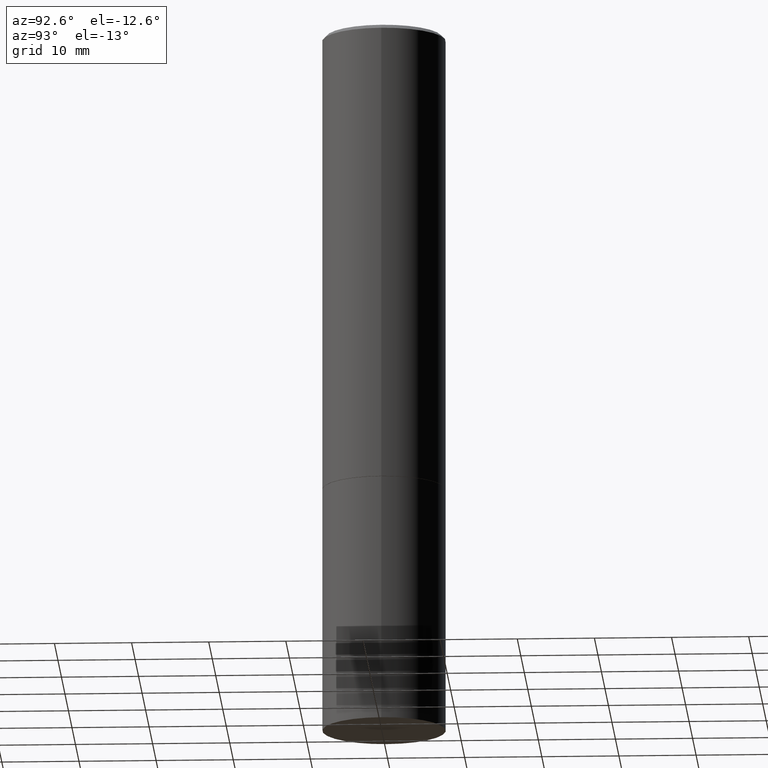
[diagram: clean part render]
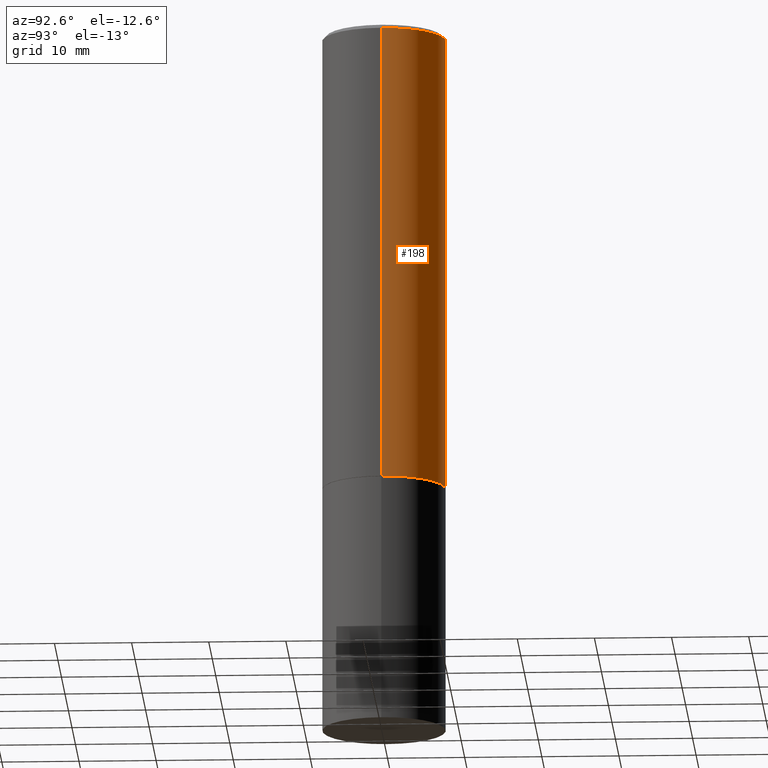
[diagram: same view with one face highlighted and labeled with its STEP entity id]
A machine part, auxiliary view. The second image highlights one B-rep face of the part: STEP entity #198.
In plain terms, the highlighted cylindrical surface (partial cylindrical patch) has radius 7.9997 mm, axis along (-0, 0, 1).
Its self-contained STEP definition (entity closure, byte-faithful):
#1 = ORIENTED_EDGE ( 'NONE', *, *, #361, .T. ) ;
#3 = VERTEX_POINT ( 'NONE', #155 ) ;
#5 = CARTESIAN_POINT ( 'NONE',  ( 5.774240945164344150E-29, -8.244085737276433464E-15, -2.361199999999999743 ) ) ;
#21 = CARTESIAN_POINT ( 'NONE',  ( 0.000000000000000000, 0.000000000000000000, 0.000000000000000000 ) ) ;
#22 = CARTESIAN_POINT ( 'NONE',  ( -0.3149499999999998967, 2.237854346276434801E-15, -1.549218606675782116E-29 ) ) ;
#25 = CIRCLE ( 'NONE', #314, 0.3149499999999997302 ) ;
#36 = VERTEX_POINT ( 'NONE', #72 ) ;
#67 = VECTOR ( 'NONE', #360, 39.37007874015748143 ) ;
#70 = CARTESIAN_POINT ( 'NONE',  ( -0.3149499999999997302, 2.129454468560424601E-15, -0.02000000000000007327 ) ) ;
#72 = CARTESIAN_POINT ( 'NONE',  ( -0.3149500000000000077, -1.919103335750211213E-15, -2.361199999999999743 ) ) ;
#79 = DIRECTION ( 'NONE',  ( -2.445468806185136597E-29, 3.491481338843145583E-15, 1.000000000000000000 ) ) ;
#86 = VERTEX_POINT ( 'NONE', #70 ) ;
#93 = ORIENTED_EDGE ( 'NONE', *, *, #224, .F. ) ;
#105 = EDGE_CURVE ( 'NONE', #3, #86, #25, .T. ) ;
#126 = LINE ( 'NONE', #22, #67 ) ;
#155 = CARTESIAN_POINT ( 'NONE',  ( 0.3149499999999997302, -2.230543471175005478E-15, -0.02000000000000007327 ) ) ;
#162 = EDGE_CURVE ( 'NONE', #36, #86, #126, .T. ) ;
#175 = DIRECTION ( 'NONE',  ( -2.445468806185136597E-29, 3.491481338843145583E-15, 1.000000000000000000 ) ) ;
#177 = VERTEX_POINT ( 'NONE', #227 ) ;
#190 = DIRECTION ( 'NONE',  ( 1.000000000000000000, -6.982962677686266711E-15, 0.000000000000000000 ) ) ;
#198 = ADVANCED_FACE ( 'NONE', ( #304 ), #334, .T. ) ;
#204 = ORIENTED_EDGE ( 'NONE', *, *, #105, .F. ) ;
#224 = EDGE_CURVE ( 'NONE', #177, #3, #251, .T. ) ;
#227 = CARTESIAN_POINT ( 'NONE',  ( 0.3149500000000000077, -1.044336983261372333E-14, -2.361199999999999743 ) ) ;
#242 = ORIENTED_EDGE ( 'NONE', *, *, #162, .T. ) ;
#251 = LINE ( 'NONE', #330, #294 ) ;
#257 = AXIS2_PLACEMENT_3D ( 'NONE', #5, #175, #264 ) ;
#264 = DIRECTION ( 'NONE',  ( 1.000000000000000000, -6.982962677686263555E-15, 0.000000000000000000 ) ) ;
#276 = DIRECTION ( 'NONE',  ( 1.000000000000000000, -6.982962677686265922E-15, 4.876176775795935232E-29 ) ) ;
#291 = CIRCLE ( 'NONE', #257, 0.3149500000000000077 ) ;
#294 = VECTOR ( 'NONE', #336, 39.37007874015748143 ) ;
#299 = DIRECTION ( 'NONE',  ( -2.445468806185136597E-29, 3.491481338843145583E-15, 1.000000000000000000 ) ) ;
#304 = FACE_OUTER_BOUND ( 'NONE', #344, .T. ) ;
#312 = AXIS2_PLACEMENT_3D ( 'NONE', #21, #79, #276 ) ;
#314 = AXIS2_PLACEMENT_3D ( 'NONE', #356, #299, #190 ) ;
#330 = CARTESIAN_POINT ( 'NONE',  ( 0.3149499999999998967, -2.199284095337288688E-15, 1.535751875536929289E-29 ) ) ;
#334 = CYLINDRICAL_SURFACE ( 'NONE', #312, 0.3149499999999998967 ) ;
#336 = DIRECTION ( 'NONE',  ( -2.445468806185136877E-29, 3.491481338843145188E-15, 1.000000000000000000 ) ) ;
#344 = EDGE_LOOP ( 'NONE', ( #1, #242, #204, #93 ) ) ;
#356 = CARTESIAN_POINT ( 'NONE',  ( 4.890937612370290675E-31, -6.982962677686316261E-17, -0.02000000000000007327 ) ) ;
#360 = DIRECTION ( 'NONE',  ( -2.445468806185136877E-29, 3.491481338843145188E-15, 1.000000000000000000 ) ) ;
#361 = EDGE_CURVE ( 'NONE', #177, #36, #291, .T. ) ;